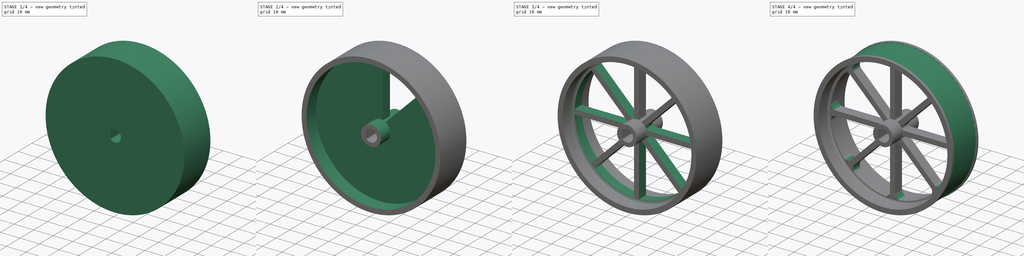
[diagram: build sequence overview — one tinted view per stage of 4, left to right]
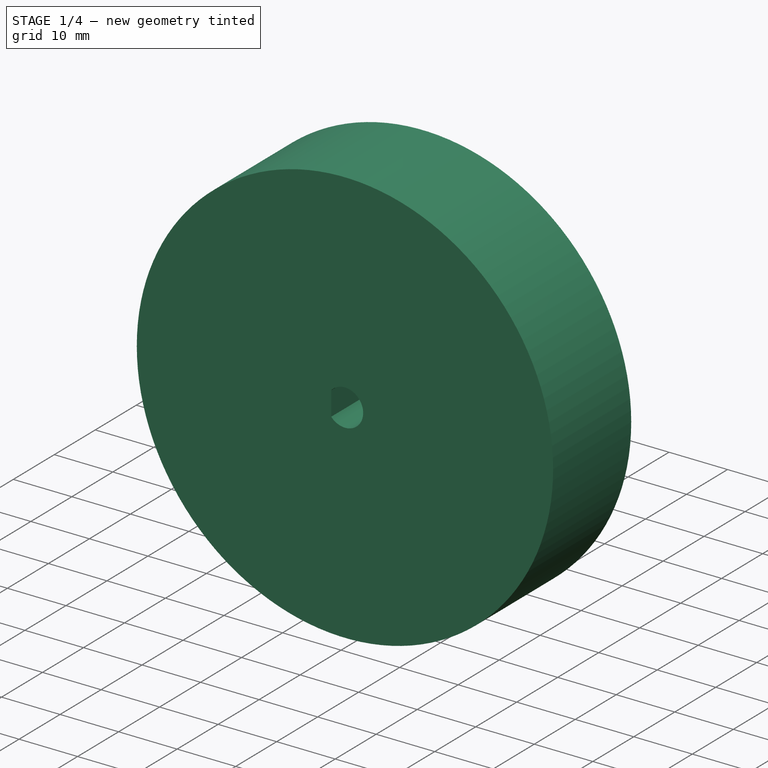
[diagram: stage 1 of 4 — iso view after this stage's code; geometry added in this stage tinted green]
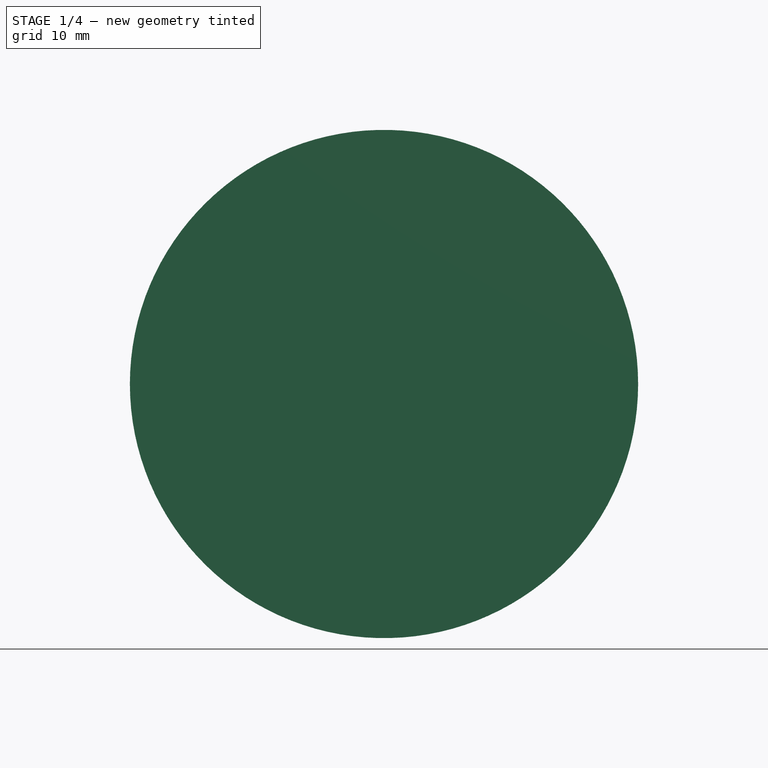
[diagram: stage 1 of 4 — front view after this stage's code; geometry added in this stage tinted green]
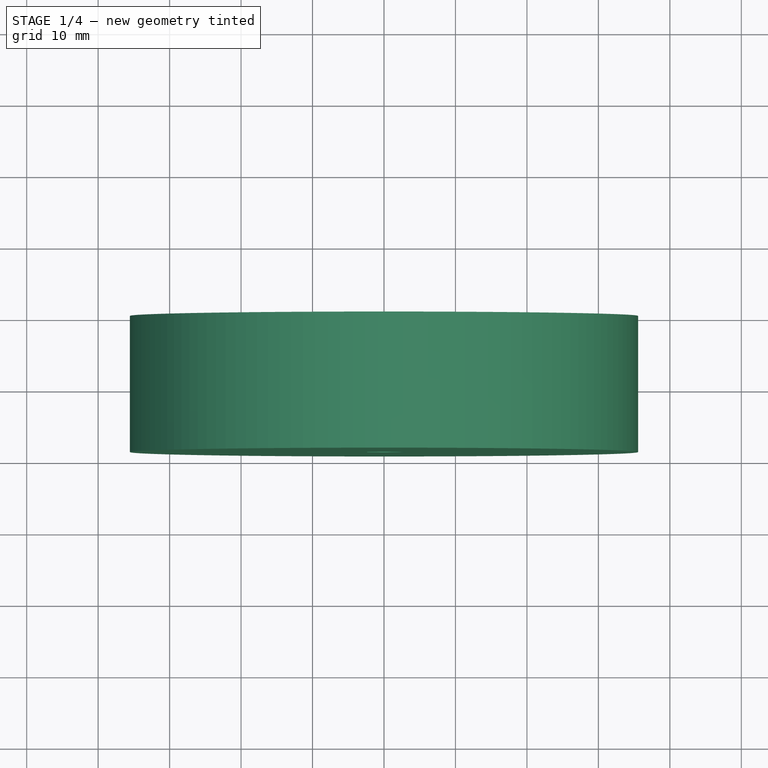
[diagram: stage 1 of 4 — top view after this stage's code; geometry added in this stage tinted green]
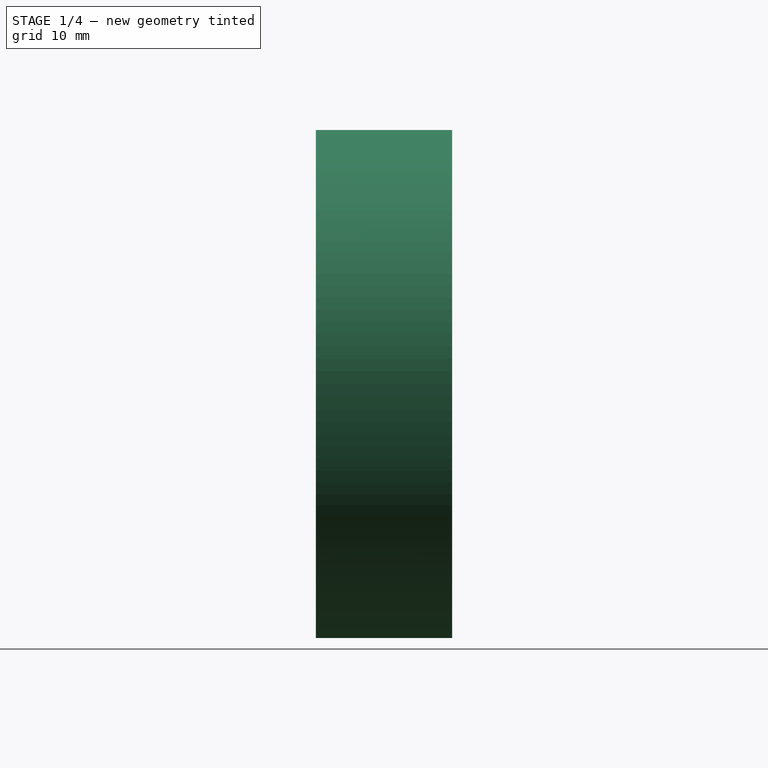
[diagram: stage 1 of 4 — right view after this stage's code; geometry added in this stage tinted green]
FCSTD DOCUMENT  (FreeCAD 0.20R27936 (Git))
Label: Wheels
License: All rights reserved
LicenseURL: http://en.wikipedia.org/wiki/All_rights_reserved
objects: Sketcher::SketchObject×5, PartDesign::Fillet×3, PartDesign::Pocket×2, PartDesign::Groove×2, PartDesign::Pad×1, PartDesign::PolarPattern×1, PartDesign::Body×1
note: 23 computed .brp shape members not serialized (recipe doc carries the construction recipe); baked Part::Feature solids carry a one-line shape summary decoded from their .brp

FEATURE [Sketcher::SketchObject] Sketch
  FullyConstrained = true
  MapMode = 5
  Placement = pos=(0,0,0) rot=(1,0,0;1.5708rad)
  Support = -> [XZ_Plane]
  sketch-geometry (1):
    g0: Circle CenterX=0 CenterY=0 CenterZ=0 NormalX=0 NormalY=0 NormalZ=1 AngleXU=0 Radius=35.56
  constraints (2):
    c: Coincident(g0,g-1)
    c: Diameter(g0) = 71.12
FEATURE [PartDesign::Pad] Pad
  Direction = (0,-1,-2e-16)
  Length = 19.05
  Length2 = 10.0076
  Placement = pos=(0,0,0) rot=(1,0,0;1.5708rad)
  Profile = -> Sketch
  ReferenceAxis = -> Sketch [N_Axis]
  Type = 0
FEATURE [Sketcher::SketchObject] Sketch001
  FullyConstrained = true
  MapMode = 5
  Placement = pos=(0,-19.05,-4.2e-15) rot=(1,0,0;1.5708rad)
  Support = -> [Pad]
  sketch-geometry (3):
    g0: ArcOfCircle CenterX=0 CenterY=0 CenterZ=0 NormalX=0 NormalY=0 NormalZ=1 AngleXU=0 Radius=3.1115 StartAngle=3.85658 EndAngle=8.70979
    g1: LineSegment StartX=-2.3495 StartY=2.03992 StartZ=0 EndX=-2.3495 EndY=-2.03992 EndZ=0
    g2: GeomPoint X=3.1115 Y=0 Z=0
  constraints (8):
    c: Coincident(g0,g-1)
    c: Coincident(g1,g0)
    c: Coincident(g1,g0)
    c: Vertical(g1)
    c: Radius(g0) = 3.1115
    c: PointOnObject(g2,g0)
    c: Distance(g2,g1) = 5.461
    c: PointOnObject(g2,g-1)
FEATURE [PartDesign::Pocket] Pocket
  BaseFeature = -> Pad
  Direction = (0,1,2e-16)
  Length = 15.494
  Length2 = 5.0038
  Placement = pos=(0,0,0) rot=(1,0,0;1.5708rad)
  Profile = -> Sketch001
  ReferenceAxis = -> Sketch001 [N_Axis]
  Type = 0
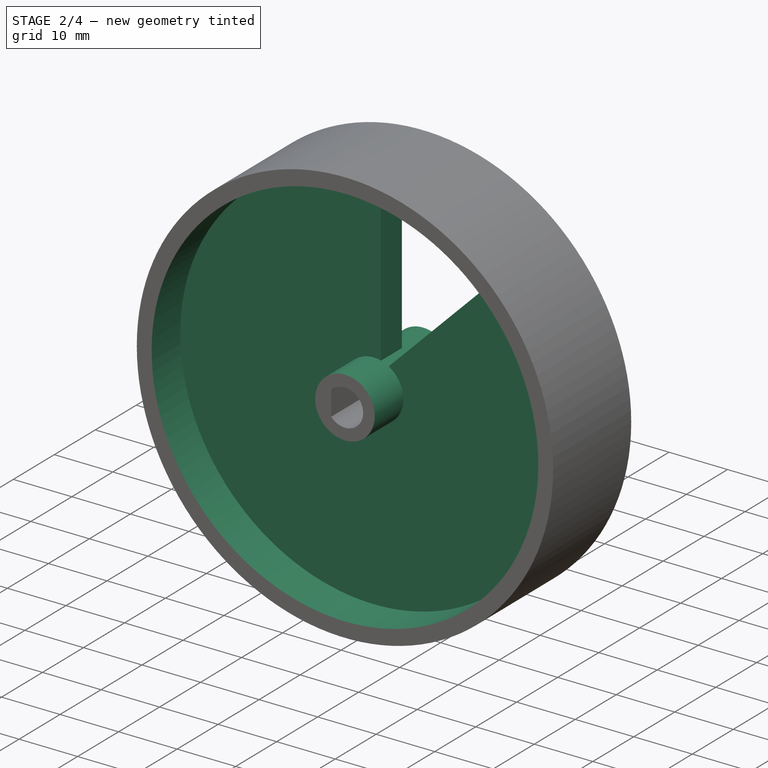
[diagram: stage 2 of 4 — iso view after this stage's code; geometry added in this stage tinted green]
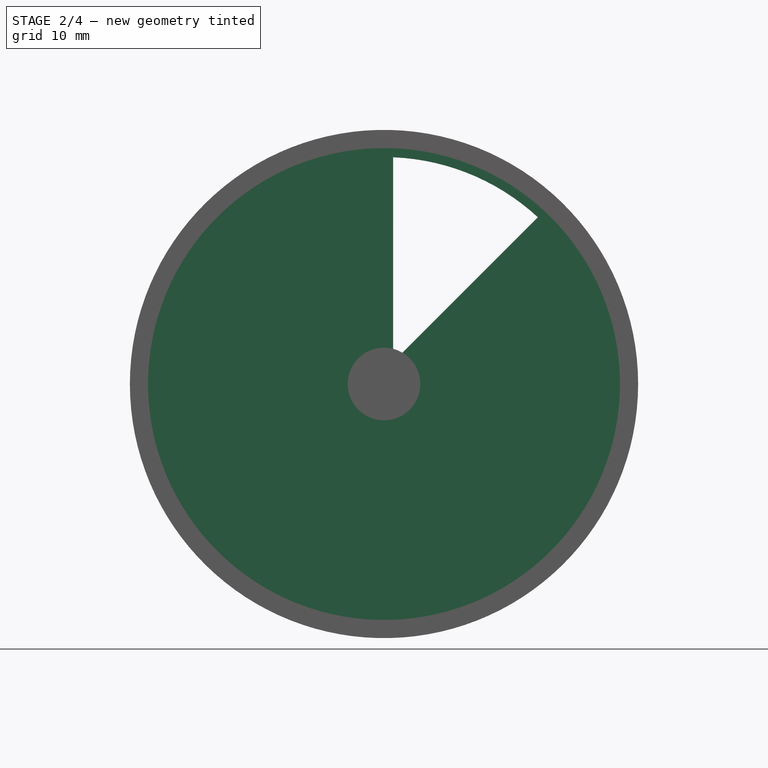
[diagram: stage 2 of 4 — front view after this stage's code; geometry added in this stage tinted green]
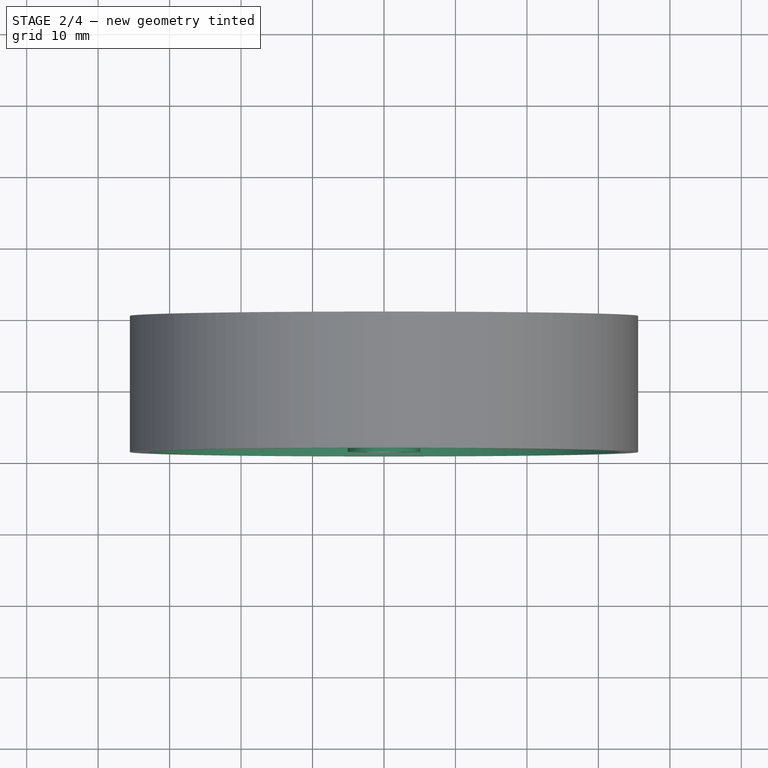
[diagram: stage 2 of 4 — top view after this stage's code; geometry added in this stage tinted green]
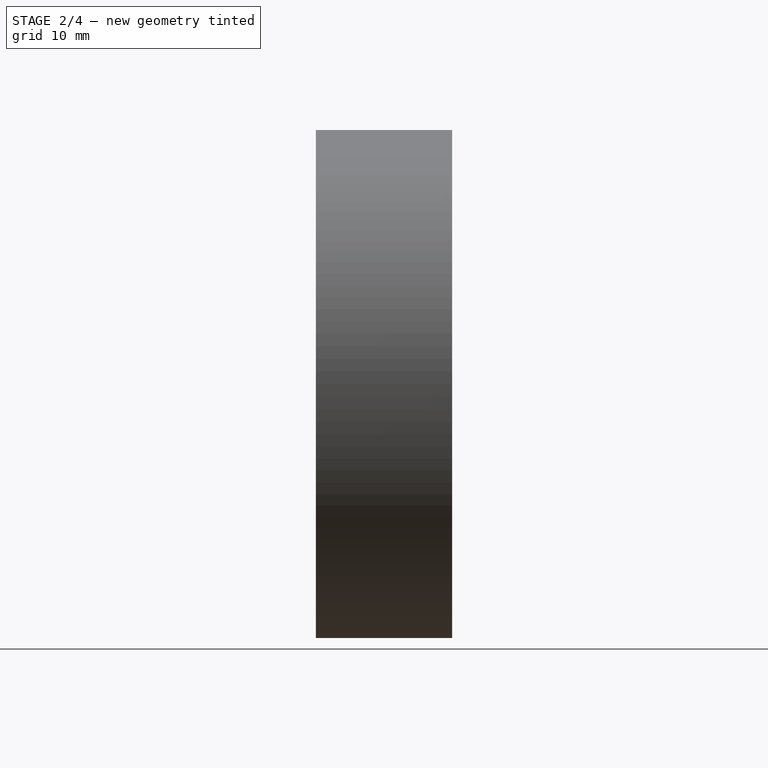
[diagram: stage 2 of 4 — right view after this stage's code; geometry added in this stage tinted green]
FEATURE [Sketcher::SketchObject] Sketch002
  ExternalGeometry = -> [Pocket]
  FullyConstrained = true
  MapMode = 5
  Support = -> [XY_Plane]
  sketch-geometry (10):
    g0: LineSegment StartX=5.08 StartY=-19.05 StartZ=0 EndX=5.08 EndY=0 EndZ=0
    g1: LineSegment StartX=5.08 StartY=0 StartZ=0 EndX=33.02 EndY=0 EndZ=0
    g2: LineSegment StartX=33.02 StartY=0 StartZ=0 EndX=33.02 EndY=-6.985 EndZ=0
    g3: LineSegment StartX=33.02 StartY=-6.985 StartZ=0 EndX=5.08 EndY=-6.985 EndZ=0
    g4: LineSegment StartX=5.08 StartY=-6.985 StartZ=0 EndX=5.08 EndY=0 EndZ=0
    g5: LineSegment StartX=5.08 StartY=-19.05 StartZ=0 EndX=33.02 EndY=-19.05 EndZ=0
    g6: LineSegment StartX=33.02 StartY=-19.05 StartZ=0 EndX=33.02 EndY=-12.065 EndZ=0
    g7: LineSegment StartX=33.02 StartY=-12.065 StartZ=0 EndX=5.08 EndY=-12.065 EndZ=0
    g8: LineSegment StartX=5.08 StartY=-12.065 StartZ=0 EndX=5.08 EndY=-19.05 EndZ=0
    g9: LineSegment StartX=33.02 StartY=-6.985 StartZ=0 EndX=33.02 EndY=-12.065 EndZ=0
  constraints (28):
    c: Vertical(g0)
    c: PointOnObject(g0,g-1)
    c: Equal(g0,g-3)
    c: Distance(g-1,g0) = 5.08
    c: Coincident(g1,g2)
    c: Coincident(g2,g3)
    c: Coincident(g3,g4)
    c: Coincident(g4,g1)
    c: Horizontal(g1)
    c: Horizontal(g3)
    c: Vertical(g2)
    c: Vertical(g4)
    c: Coincident(g1,g0)
    c: Coincident(g5,g6)
    c: Coincident(g6,g7)
    c: Coincident(g7,g8)
    c: Coincident(g8,g5)
    c: Horizontal(g5)
    c: Horizontal(g7)
    c: Vertical(g6)
    c: Vertical(g8)
    c: Coincident(g5,g0)
    c: Coincident(g9,g2)
    c: Coincident(g9,g6)
    c: Vertical(g9)
    c: Distance(g2,g-3) = 2.54
    c: Equal(g2,g6)
    c: Distance(g9) = 5.08
FEATURE [PartDesign::Groove] Groove
  Angle = 360
  Axis = (0,1,0)
  Base = (0,0,0)
  BaseFeature = -> Pocket
  Placement = pos=(0,0,0) rot=(1,0,0;1.5708rad)
  Profile = -> Sketch002
  ReferenceAxis = -> Sketch002 [V_Axis]
FEATURE [Sketcher::SketchObject] Sketch003
  ExternalGeometry = -> [Groove]
  FullyConstrained = true
  MapMode = 5
  Placement = pos=(0,-19.05,-4.2e-15) rot=(1,0,0;1.5708rad)
  Support = -> [Groove]
  sketch-geometry (6):
    g0: LineSegment StartX=1.27 StartY=4.91869 StartZ=0 EndX=1.27 EndY=31.7246 EndZ=0
    g1: ArcOfCircle CenterX=0 CenterY=0 CenterZ=0 NormalX=0 NormalY=0 NormalZ=1 AngleXU=0 Radius=5.08 StartAngle=1.03808 EndAngle=1.31812
    g2: LineSegment StartX=2.58001 StartY=4.37606 StartZ=0 EndX=21.5346 EndY=23.3307 EndZ=0
    g3: ArcOfCircle CenterX=0 CenterY=0 CenterZ=0 NormalX=0 NormalY=0 NormalZ=1 AngleXU=0 Radius=31.75 StartAngle=0.825409 EndAngle=1.53079
    g4: LineSegment StartX=0 StartY=0 StartZ=0 EndX=0 EndY=33.02 EndZ=0
    g5: LineSegment StartX=0 StartY=0 StartZ=0 EndX=23.3487 EndY=23.3487 EndZ=0
  constraints (18):
    c: Vertical(g0)
    c: Coincident(g1,g-1)
    c: Coincident(g1,g0)
    c: Coincident(g2,g1)
    c: Coincident(g3,g1)
    c: Coincident(g3,g0)
    c: Coincident(g3,g2)
    c: Coincident(g4,g1)
    c: PointOnObject(g4,g-3)
    c: Vertical(g4)
    c: Coincident(g5,g1)
    c: PointOnObject(g5,g-3)
    c: Angle(g5,g4) = 0.785398
    c: Parallel(g2,g5)
    c: Distance(g0,g4) = 1.27
    c: Distance(g1,g5) = 1.27
    c: Radius(g1) = 5.08
    c: Radius(g3) = 31.75
FEATURE [PartDesign::Pocket] Pocket001
  BaseFeature = -> Groove
  Direction = (0,1,2e-16)
  Length = 5.0038
  Length2 = 5.0038
  Placement = pos=(0,0,0) rot=(1,0,0;1.5708rad)
  Profile = -> Sketch003
  ReferenceAxis = -> Sketch003 [N_Axis]
  Type = 1
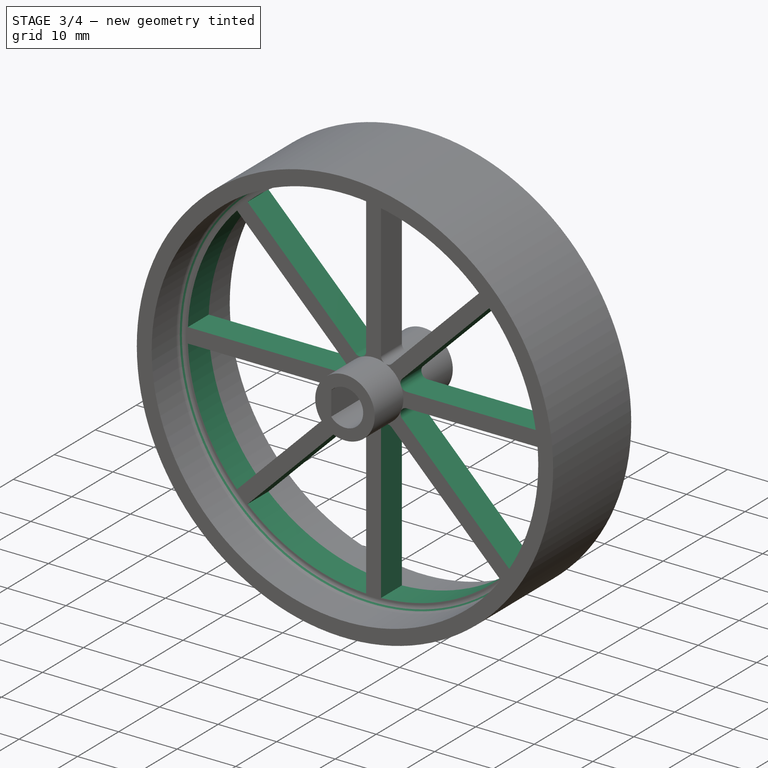
[diagram: stage 3 of 4 — iso view after this stage's code; geometry added in this stage tinted green]
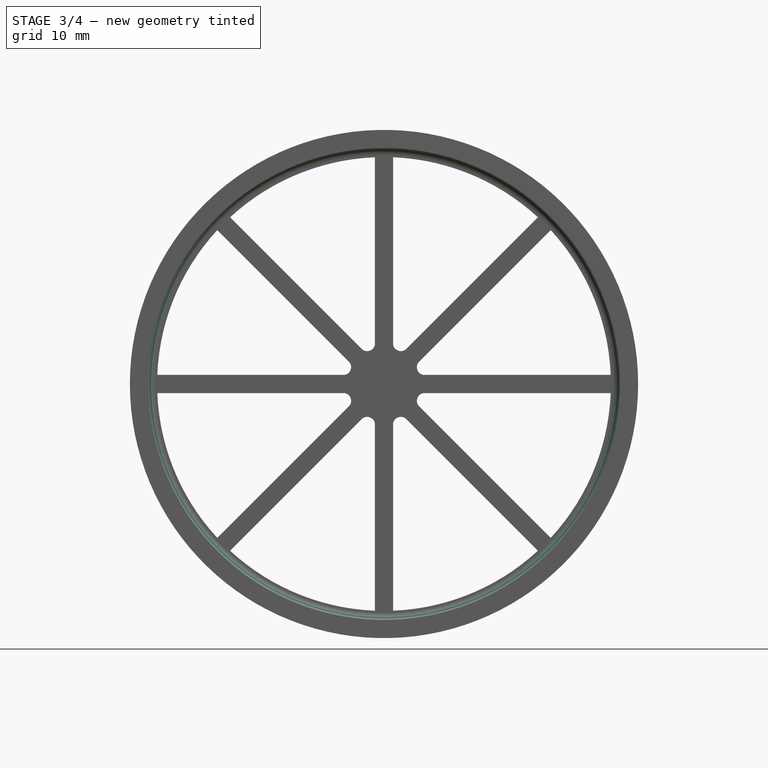
[diagram: stage 3 of 4 — front view after this stage's code; geometry added in this stage tinted green]
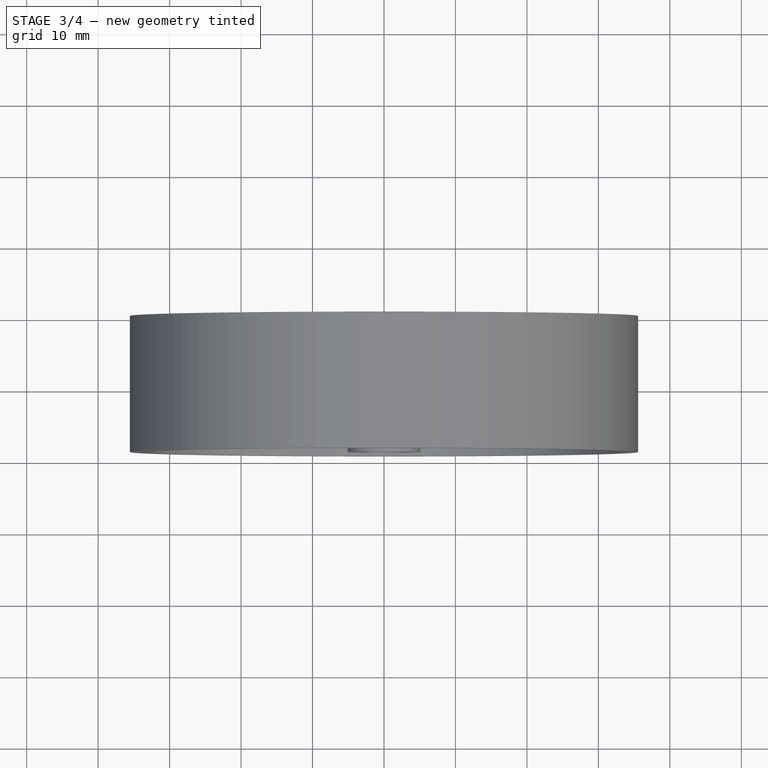
[diagram: stage 3 of 4 — top view after this stage's code; geometry added in this stage tinted green]
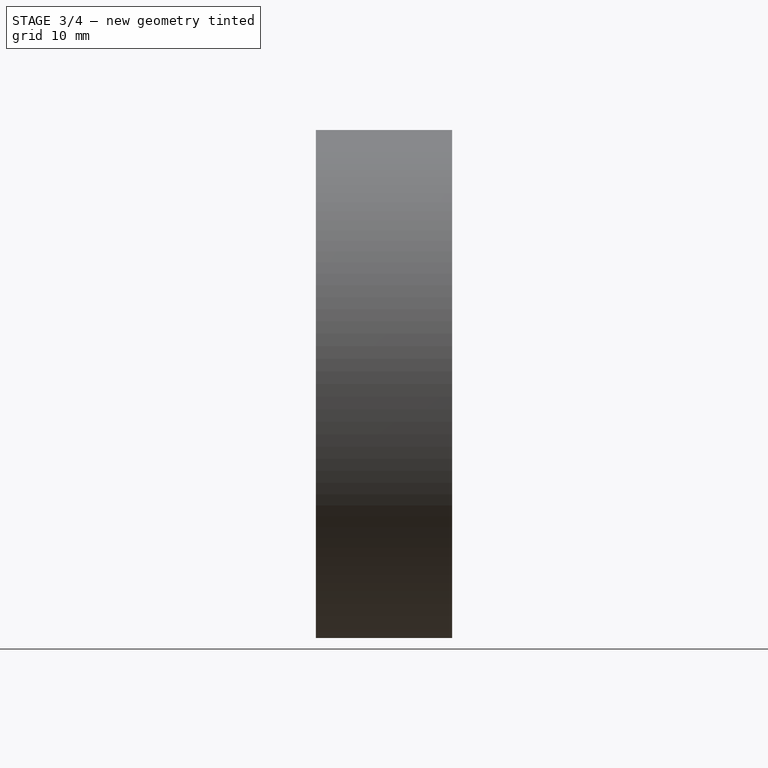
[diagram: stage 3 of 4 — right view after this stage's code; geometry added in this stage tinted green]
FEATURE [PartDesign::PolarPattern] PolarPattern
  Angle = 360
  Axis = -> Sketch003 [N_Axis]
  BaseFeature = -> Pocket001
  Occurrences = 8
  Originals = -> [Pocket001]
  Overlap = 0
  Placement = pos=(0,0,0) rot=(1,0,0;1.5708rad)
  Refine = true
FEATURE [PartDesign::Fillet] Fillet
  Base = -> PolarPattern [Edge8,Edge6]
  BaseFeature = -> PolarPattern
  Placement = pos=(0,0,0) rot=(1,0,0;1.5708rad)
  Radius = 1.016
  SupportTransform = false
  UseAllEdges = false
FEATURE [PartDesign::Fillet] Fillet001
  Base = -> Fillet [Edge100,Edge87,Edge85,Edge84,Edge82,Edge42,Edge61,Edge96,Edge94,Edge90,Edge88,Edge99,Edge97,Edge93,Edge91,Edge102]
  BaseFeature = -> Fillet
  Placement = pos=(0,0,0) rot=(1,0,0;1.5708rad)
  Radius = 1.016
  SupportTransform = false
  UseAllEdges = false
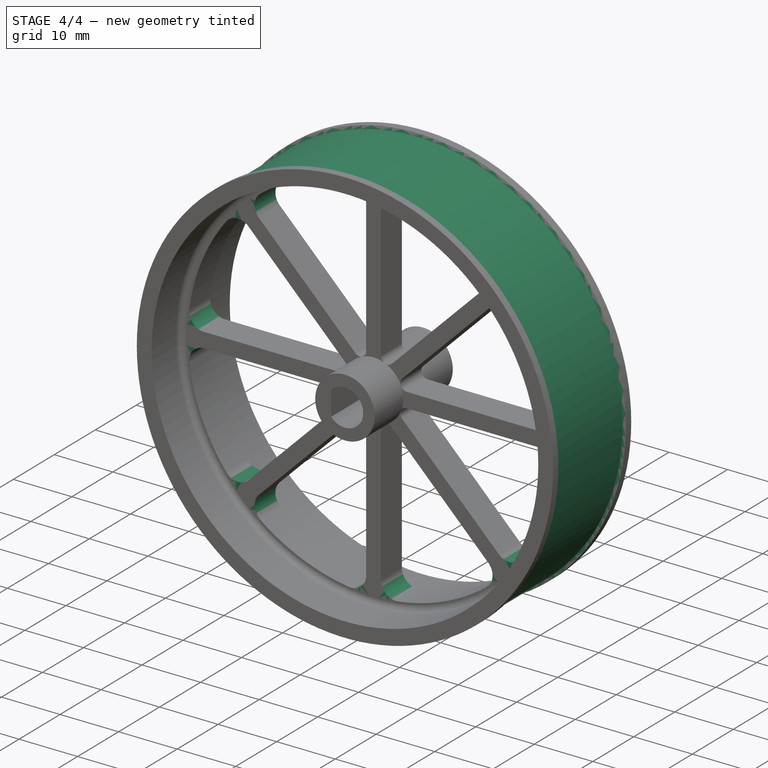
[diagram: stage 4 of 4 — iso view after this stage's code; geometry added in this stage tinted green]
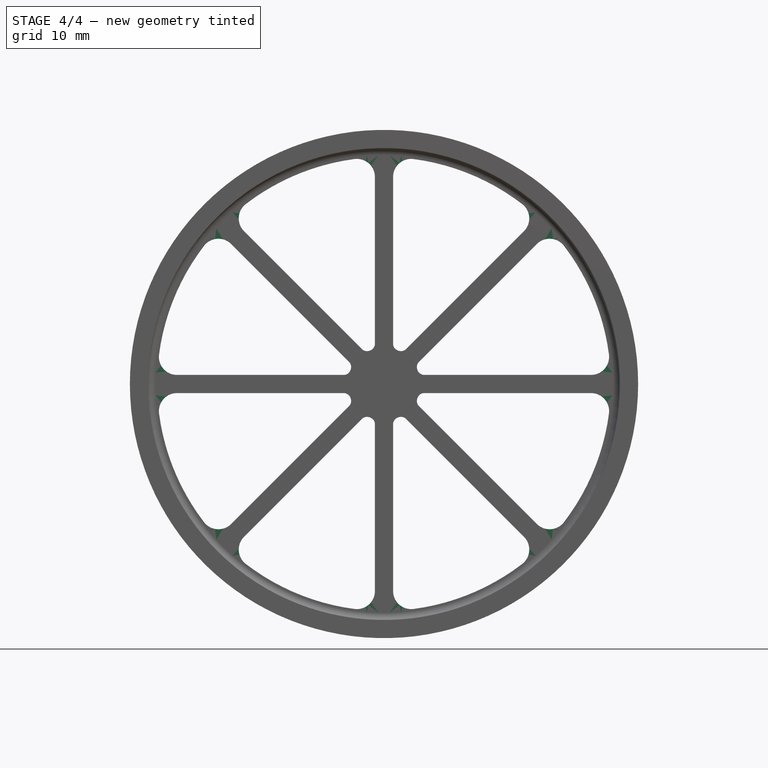
[diagram: stage 4 of 4 — front view after this stage's code; geometry added in this stage tinted green]
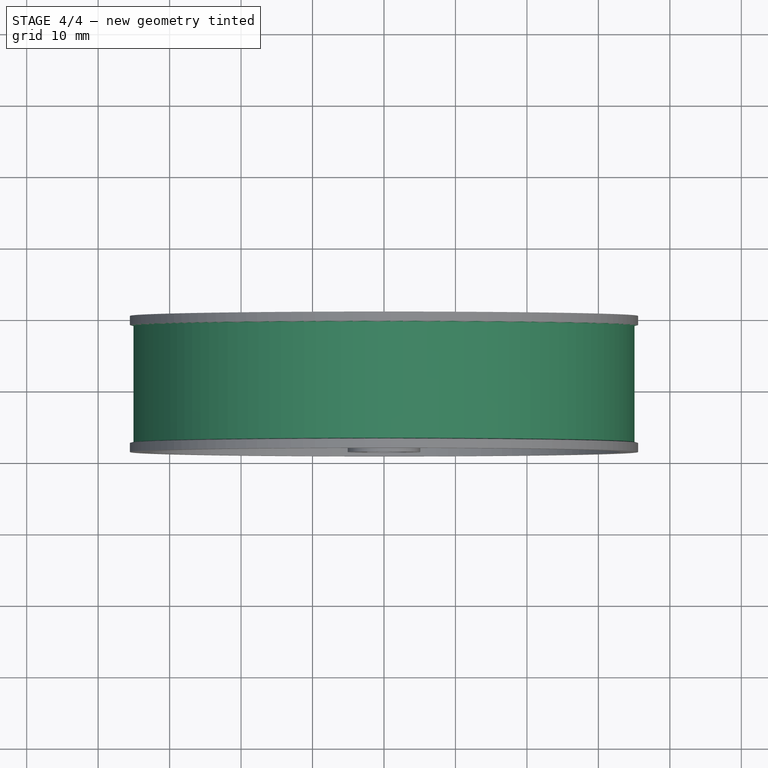
[diagram: stage 4 of 4 — top view after this stage's code; geometry added in this stage tinted green]
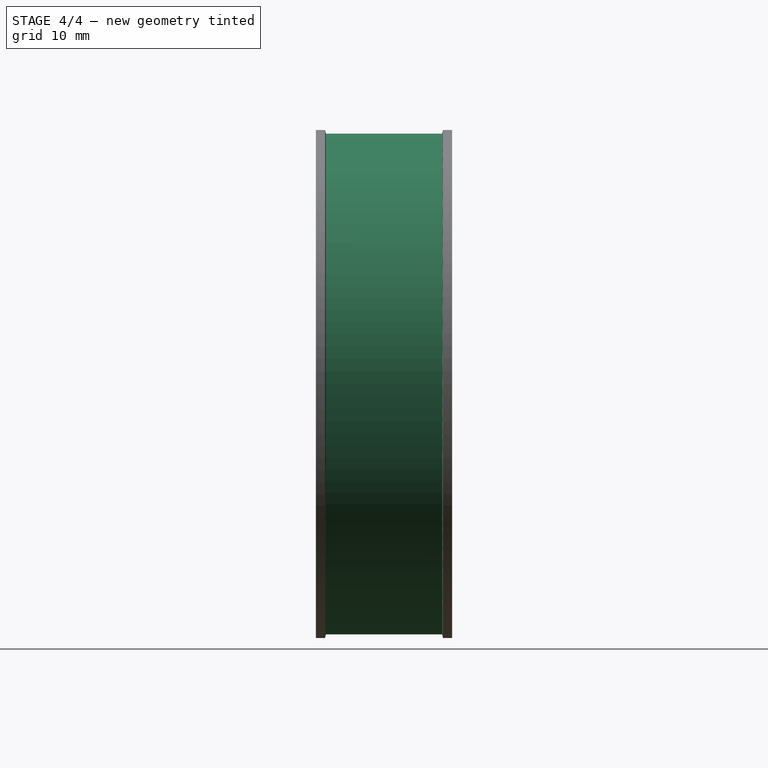
[diagram: stage 4 of 4 — right view after this stage's code; geometry added in this stage tinted green]
FEATURE [PartDesign::Fillet] Fillet002
  Base = -> Fillet001 [Edge180,Edge166,Edge162,Edge73,Edge156,Edge69,Edge160,Edge174,Edge178,Edge192,Edge196,Edge210,Edge214,Edge202,Edge198,Edge184]
  BaseFeature = -> Fillet001
  Placement = pos=(0,0,0) rot=(1,0,0;1.5708rad)
  Radius = 2.54
  SupportTransform = false
  UseAllEdges = false
FEATURE [Sketcher::SketchObject] Sketch004
  ExternalGeometry = -> [Fillet002]
  FullyConstrained = true
  MapMode = 5
  Support = -> [XY_Plane]
  sketch-geometry (5):
    g0: LineSegment StartX=35.56 StartY=-1.27 StartZ=0 EndX=35.56 EndY=-17.78 EndZ=0
    g1: LineSegment StartX=35.56 StartY=-17.78 StartZ=0 EndX=35.052 EndY=-17.653 EndZ=0
    g2: LineSegment StartX=35.052 StartY=-17.653 StartZ=0 EndX=35.052 EndY=-1.397 EndZ=0
    g3: LineSegment StartX=35.052 StartY=-1.397 StartZ=0 EndX=35.56 EndY=-1.27 EndZ=0
    g4: LineSegment StartX=35.052 StartY=-9.525 StartZ=0 EndX=35.56 EndY=-9.525 EndZ=0
  constraints (13):
    c: PointOnObject(g0,g-3)
    c: Coincident(g1,g0)
    c: Coincident(g2,g1)
    c: Vertical(g2)
    c: Coincident(g3,g2)
    c: Coincident(g3,g0)
    c: Horizontal(g4)
    c: Symmetric(g0,g0,g4)
    c: Symmetric(g-3,g-3,g4)
    c: Symmetric(g2,g1,g4)
    c: Distance(g0) = 16.51
    c: Distance(g2) = 16.256
    c: Distance(g4) = 0.508
FEATURE [PartDesign::Groove] Groove001
  Angle = 360
  Axis = (0,1,0)
  Base = (0,0,0)
  BaseFeature = -> Fillet002
  Placement = pos=(0,0,0) rot=(1,0,0;1.5708rad)
  Profile = -> Sketch004
  ReferenceAxis = -> Sketch004 [V_Axis]
  Refine = true
FEATURE [PartDesign::Body] Body  label="Wheels Body"
  Group = -> [Sketch,Pad,Sketch001,Pocket,Sketch002,Groove,Sketch003,Pocket001,PolarPattern,Fillet,Fillet001,Fillet002,Sketch004,Groove001]
  Origin = -> Origin
  Tip = -> Groove001
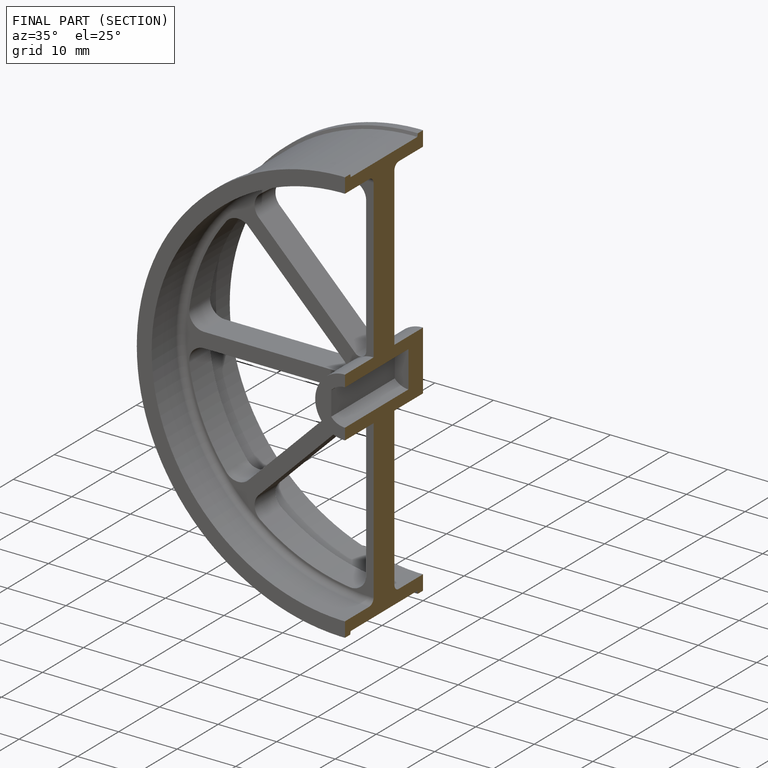
[diagram: finished part — half-section view (interior)]
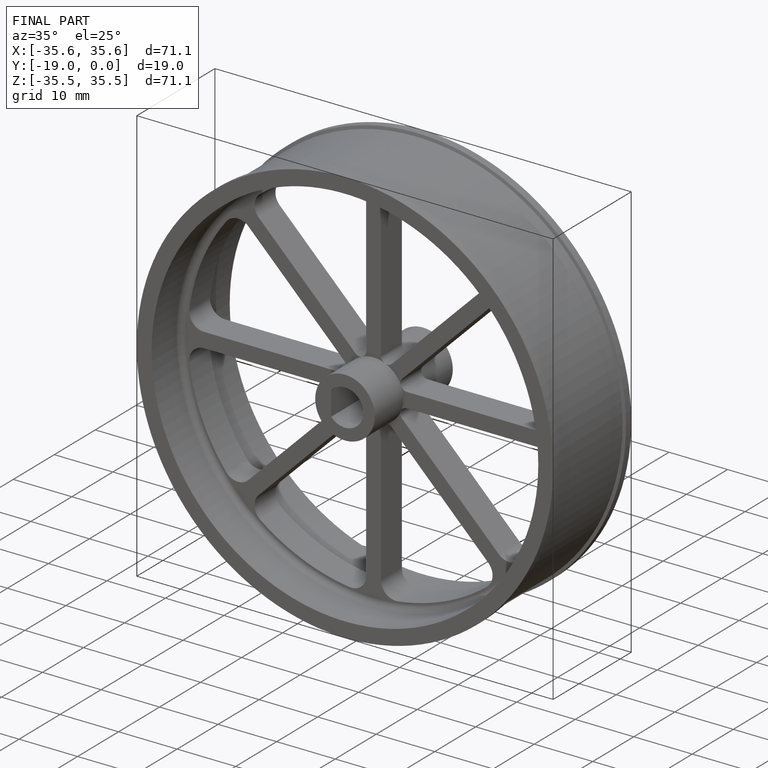
[diagram: finished part — iso view with bounding-box wireframe]
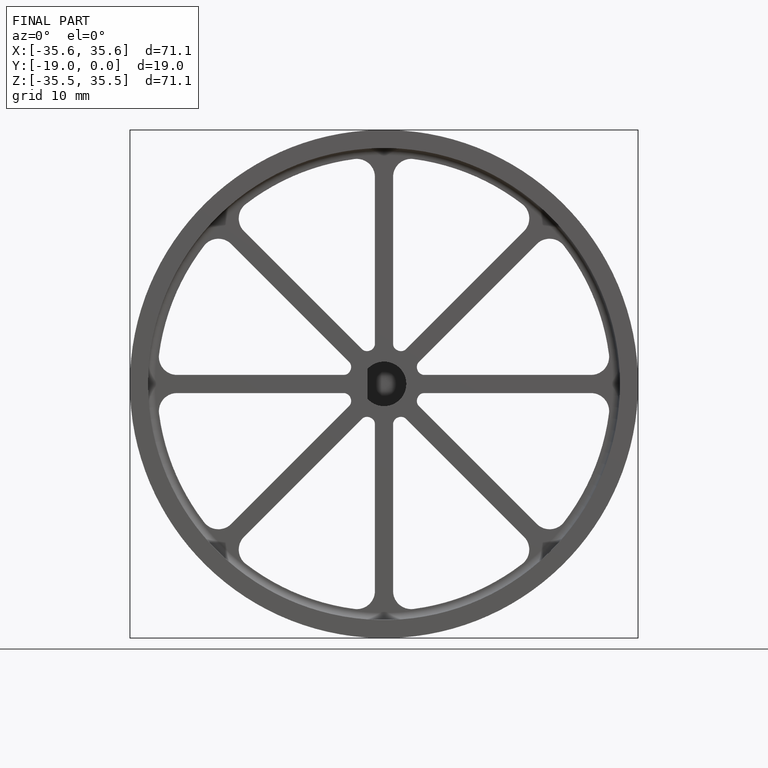
[diagram: finished part — front view with bounding-box wireframe]
